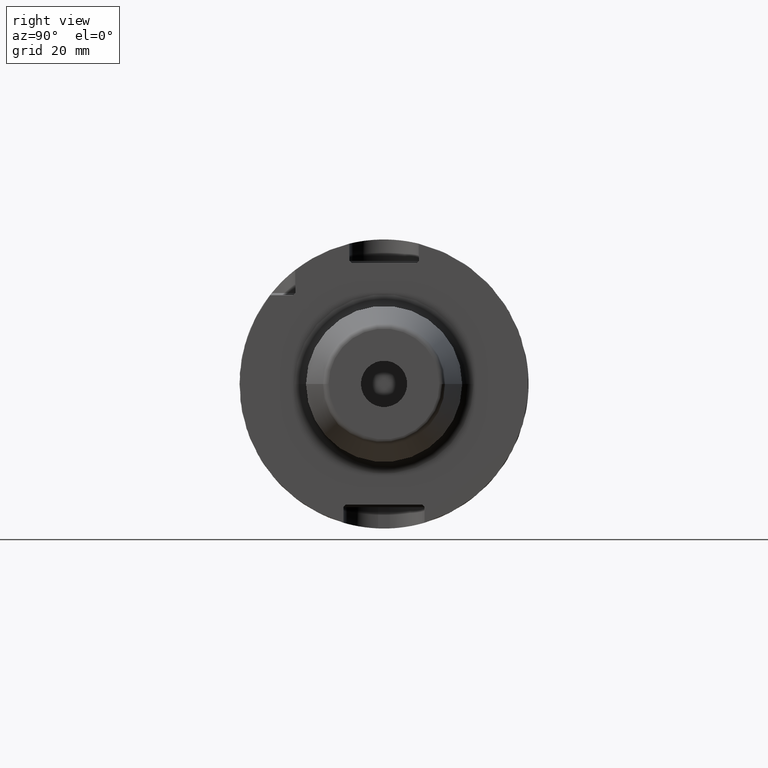
[diagram: clean part render]
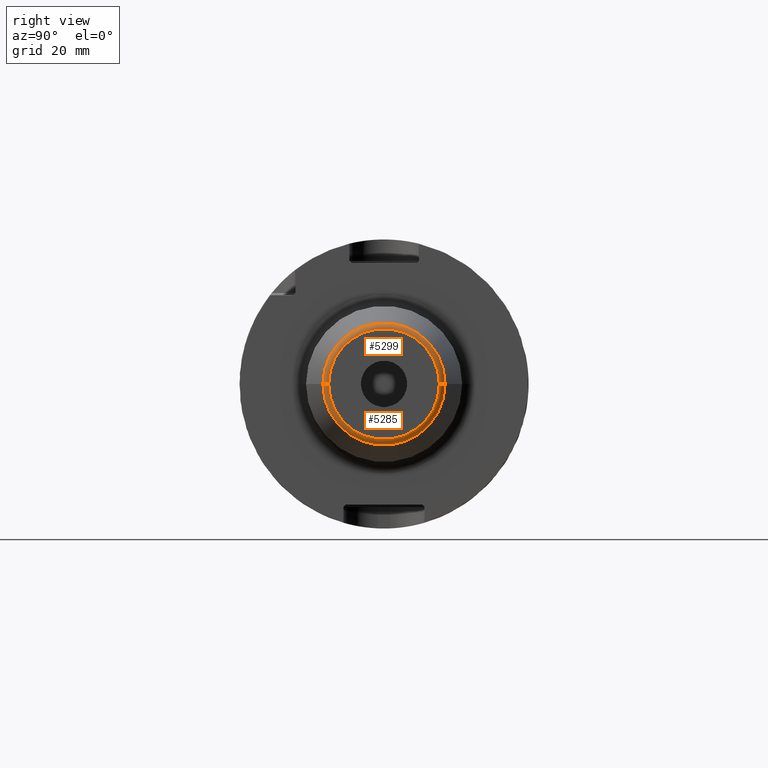
[diagram: same view with one multi-face feature highlighted, each face labeled with its STEP entity id]
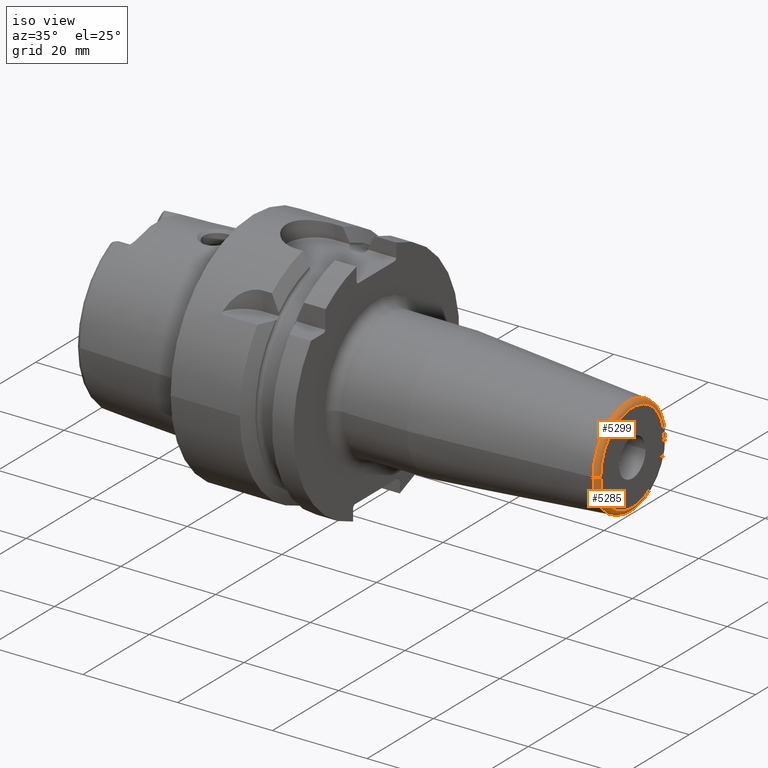
[diagram: same view with one multi-face feature highlighted, each face labeled with its STEP entity id]
A machine part, right view. The highlighted faces form ONE feature: a constant-radius fillet chain: 2 tangent blend faces with common blend radius 1 mm. The faces share edges in the B-rep.
A second angle (iso view) of the same feature is appended — it is thin or edge-on in the first view.
Their STEP definitions:
[1] entity #5285 (Torus):
#1930=CARTESIAN_POINT('',(7.907845909573E1,0.E0,0.E0));
#1931=DIRECTION('',(-1.E0,0.E0,0.E0));
#1932=DIRECTION('',(0.E0,1.E0,0.E0));
#1933=AXIS2_PLACEMENT_3D('',#1930,#1931,#1932);
#1943=CARTESIAN_POINT('',(7.9E1,9.575609508342E0,1.707039370968E-11));
#1944=DIRECTION('',(0.E0,1.782695518981E-12,-1.E0));
#1945=DIRECTION('',(7.845909572794E-2,9.969173337331E-1,1.777200063641E-12));
#1946=AXIS2_PLACEMENT_3D('',#1943,#1944,#1945);
#1948=CARTESIAN_POINT('',(7.9E1,-9.575609508342E0,-1.707758934266E-11));
#1949=DIRECTION('',(0.E0,-1.783446654247E-12,1.E0));
#1950=DIRECTION('',(7.845909572794E-2,-9.969173337331E-1,-1.777948883407E-12));
#1951=AXIS2_PLACEMENT_3D('',#1948,#1949,#1950);
#1968=CARTESIAN_POINT('',(8.E1,0.E0,0.E0));
#1969=DIRECTION('',(-1.E0,0.E0,0.E0));
#1970=DIRECTION('',(0.E0,1.E0,0.E0));
#1971=AXIS2_PLACEMENT_3D('',#1968,#1969,#1970);
#3230=CARTESIAN_POINT('',(7.907845909573E1,1.057252684207E1,0.E0));
#3231=CARTESIAN_POINT('',(7.907845909573E1,-1.057252684207E1,0.E0));
#3232=VERTEX_POINT('',#3230);
#3233=VERTEX_POINT('',#3231);
#3234=CARTESIAN_POINT('',(8.E1,9.575609508342E0,0.E0));
#3235=CARTESIAN_POINT('',(8.E1,-9.575609508342E0,0.E0));
#3236=VERTEX_POINT('',#3234);
#3237=VERTEX_POINT('',#3235);
#5271=CARTESIAN_POINT('',(7.9E1,0.E0,0.E0));
#5272=DIRECTION('',(1.E0,0.E0,0.E0));
#5273=DIRECTION('',(0.E0,9.999810241799E-1,6.160461033104E-3));
#5274=AXIS2_PLACEMENT_3D('',#5271,#5272,#5273);
#5275=TOROIDAL_SURFACE('',#5274,9.575609508342E0,1.E0);
#5276=ORIENTED_EDGE('',*,*,#5261,.T.);
#5278=ORIENTED_EDGE('',*,*,#5277,.T.);
#5280=ORIENTED_EDGE('',*,*,#5279,.F.);
#5282=ORIENTED_EDGE('',*,*,#5281,.F.);
#5283=EDGE_LOOP('',(#5276,#5278,#5280,#5282));
#5284=FACE_OUTER_BOUND('',#5283,.F.);
#5285=ADVANCED_FACE('',(#5284),#5275,.T.);
#1934=CIRCLE('',#1933,1.057252684207E1);
#1947=CIRCLE('',#1946,1.E0);
#1952=CIRCLE('',#1951,1.E0);
#1972=CIRCLE('',#1971,9.575609508342E0);
#5261=EDGE_CURVE('',#3232,#3233,#1934,.T.);
#5277=EDGE_CURVE('',#3233,#3237,#1952,.T.);
#5279=EDGE_CURVE('',#3236,#3237,#1972,.T.);
#5281=EDGE_CURVE('',#3232,#3236,#1947,.T.);
[2] entity #5299 (Torus):
#1943=CARTESIAN_POINT('',(7.9E1,9.575609508342E0,1.707039370968E-11));
#1944=DIRECTION('',(0.E0,1.782695518981E-12,-1.E0));
#1945=DIRECTION('',(7.845909572794E-2,9.969173337331E-1,1.777200063641E-12));
#1946=AXIS2_PLACEMENT_3D('',#1943,#1944,#1945);
#1948=CARTESIAN_POINT('',(7.9E1,-9.575609508342E0,-1.707758934266E-11));
#1949=DIRECTION('',(0.E0,-1.783446654247E-12,1.E0));
#1950=DIRECTION('',(7.845909572794E-2,-9.969173337331E-1,-1.777948883407E-12));
#1951=AXIS2_PLACEMENT_3D('',#1948,#1949,#1950);
#1953=CARTESIAN_POINT('',(7.907845909573E1,0.E0,0.E0));
#1954=DIRECTION('',(-1.E0,0.E0,0.E0));
#1955=DIRECTION('',(0.E0,-1.E0,0.E0));
#1956=AXIS2_PLACEMENT_3D('',#1953,#1954,#1955);
#1973=CARTESIAN_POINT('',(8.E1,0.E0,0.E0));
#1974=DIRECTION('',(-1.E0,0.E0,0.E0));
#1975=DIRECTION('',(0.E0,-1.E0,0.E0));
#1976=AXIS2_PLACEMENT_3D('',#1973,#1974,#1975);
#3230=CARTESIAN_POINT('',(7.907845909573E1,1.057252684207E1,0.E0));
#3231=CARTESIAN_POINT('',(7.907845909573E1,-1.057252684207E1,0.E0));
#3232=VERTEX_POINT('',#3230);
#3233=VERTEX_POINT('',#3231);
#3234=CARTESIAN_POINT('',(8.E1,9.575609508342E0,0.E0));
#3235=CARTESIAN_POINT('',(8.E1,-9.575609508342E0,0.E0));
#3236=VERTEX_POINT('',#3234);
#3237=VERTEX_POINT('',#3235);
#5286=CARTESIAN_POINT('',(7.9E1,0.E0,0.E0));
#5287=DIRECTION('',(1.E0,0.E0,0.E0));
#5288=DIRECTION('',(0.E0,-9.999810241799E-1,-6.160461033104E-3));
#5289=AXIS2_PLACEMENT_3D('',#5286,#5287,#5288);
#5290=TOROIDAL_SURFACE('',#5289,9.575609508342E0,1.E0);
#5292=ORIENTED_EDGE('',*,*,#5291,.T.);
#5293=ORIENTED_EDGE('',*,*,#5281,.T.);
#5295=ORIENTED_EDGE('',*,*,#5294,.F.);
#5296=ORIENTED_EDGE('',*,*,#5277,.F.);
#5297=EDGE_LOOP('',(#5292,#5293,#5295,#5296));
#5298=FACE_OUTER_BOUND('',#5297,.F.);
#5299=ADVANCED_FACE('',(#5298),#5290,.T.);
#1947=CIRCLE('',#1946,1.E0);
#1952=CIRCLE('',#1951,1.E0);
#1957=CIRCLE('',#1956,1.057252684207E1);
#1977=CIRCLE('',#1976,9.575609508342E0);
#5277=EDGE_CURVE('',#3233,#3237,#1952,.T.);
#5281=EDGE_CURVE('',#3232,#3236,#1947,.T.);
#5291=EDGE_CURVE('',#3233,#3232,#1957,.T.);
#5294=EDGE_CURVE('',#3237,#3236,#1977,.T.);